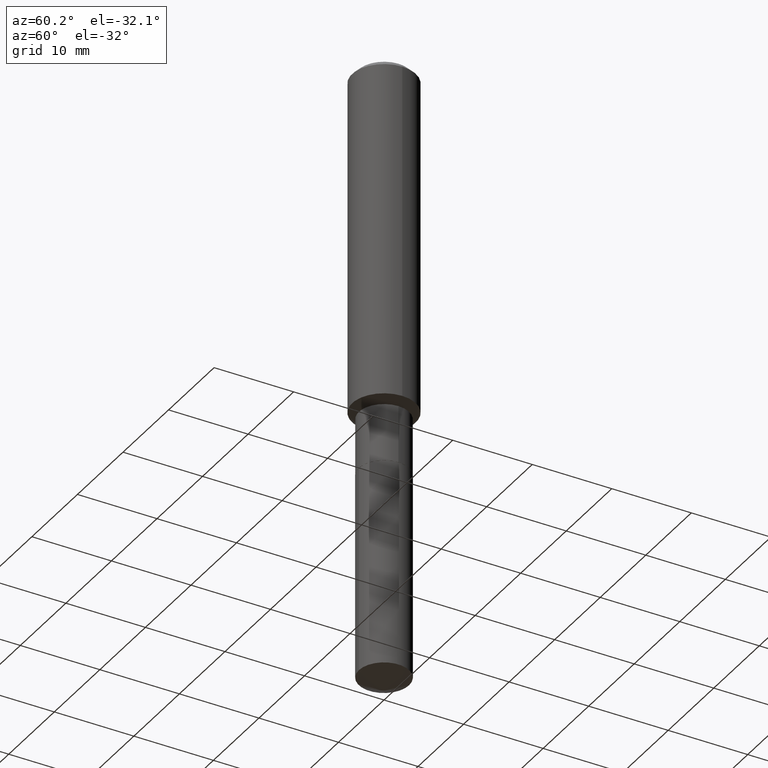
[diagram: clean part render]
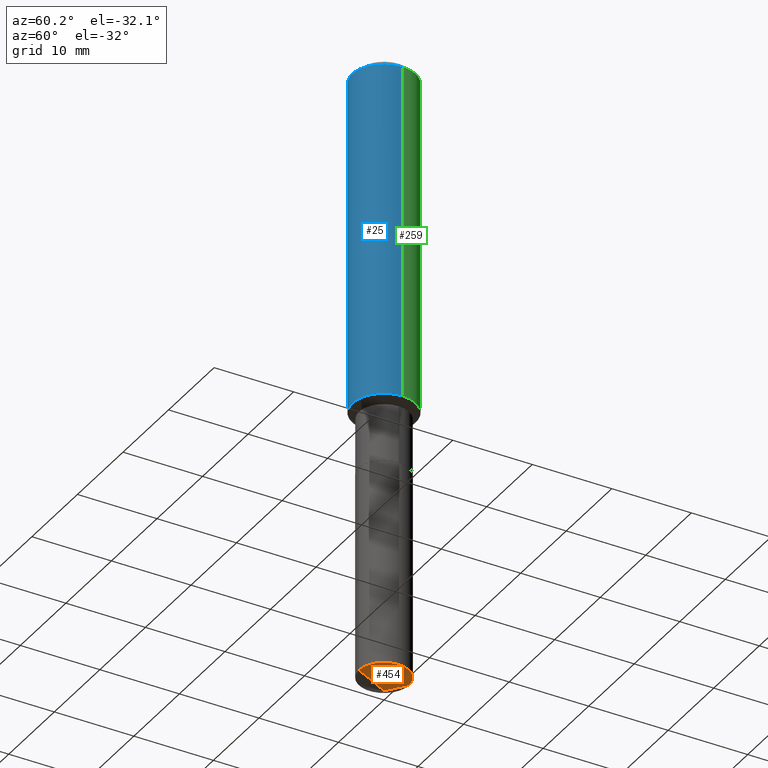
[diagram: same view with three faces highlighted in distinct colors, each labeled with its STEP entity id]
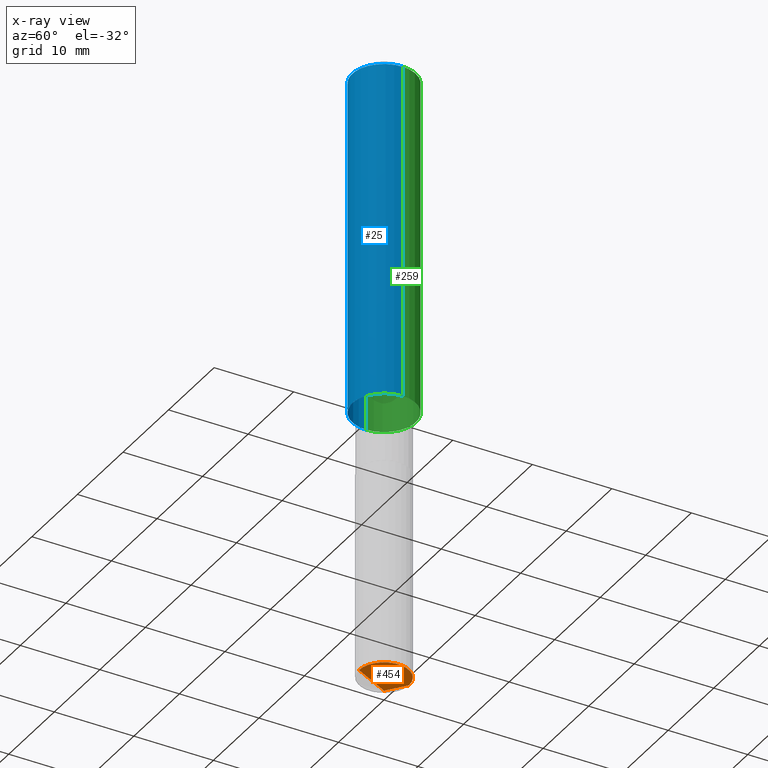
[diagram: x-ray of the same camera — body ghosted, the three highlighted faces saturated]
A machine part, auxiliary view with three faces highlighted in distinct colors.
The next image is the same camera in x-ray (body ghosted, the three faces saturated) — at least one of them is partly hidden behind the body in this view.
Their STEP definitions:

[orange] entity #454 — the highlighted conical surface has half-angle 62 deg.
#1 = VECTOR ( 'NONE', #429, 39.37007874015748854 ) ;
#8 = DIRECTION ( 'NONE',  ( -6.165590087286832874E-15, -0.8829475928589261002, 0.4694715627858920826 ) ) ;
#16 = ORIENTED_EDGE ( 'NONE', *, *, #290, .T. ) ;
#43 = LINE ( 'NONE', #314, #445 ) ;
#49 = DIRECTION ( 'NONE',  ( -6.982962677686265922E-15, -1.000000000000000000, 4.406206441393973340E-15 ) ) ;
#70 = DIRECTION ( 'NONE',  ( -2.445312113218767742E-29, 3.491705732089395604E-15, 1.000000000000000000 ) ) ;
#76 = CARTESIAN_POINT ( 'NONE',  ( 7.444501947917535459E-29, -1.062923494742235287E-14, -3.044268030473976872 ) ) ;
#81 = AXIS2_PLACEMENT_3D ( 'NONE', #213, #363, #395 ) ;
#88 = CIRCLE ( 'NONE', #399, 0.1239999999999999991 ) ;
#139 = CONICAL_SURFACE ( 'NONE', #81, 74.04434902938348273, 1.082104136236486269 ) ;
#200 = LINE ( 'NONE', #270, #1 ) ;
#213 = CARTESIAN_POINT ( 'NONE',  ( -8.866640425003587604E-28, 1.266092796264744180E-13, 36.25987874015748247 ) ) ;
#243 = FACE_OUTER_BOUND ( 'NONE', #409, .T. ) ;
#261 = CARTESIAN_POINT ( 'NONE',  ( -8.658873720330223828E-16, -0.1240000000000106156, -3.044268030473976427 ) ) ;
#270 = CARTESIAN_POINT ( 'NONE',  ( 7.606048198673468598E-29, -1.085899679874418524E-14, -3.110199999999999854 ) ) ;
#279 = CARTESIAN_POINT ( 'NONE',  ( 7.605409734533011841E-29, -1.085990316794443737E-14, -3.110199999999999854 ) ) ;
#290 = EDGE_CURVE ( 'NONE', #449, #366, #200, .T. ) ;
#314 = CARTESIAN_POINT ( 'NONE',  ( 7.605409734533011841E-29, -1.085990316794443737E-14, -3.110199999999999854 ) ) ;
#346 = ORIENTED_EDGE ( 'NONE', *, *, #380, .F. ) ;
#349 = EDGE_CURVE ( 'NONE', #402, #366, #88, .T. ) ;
#363 = DIRECTION ( 'NONE',  ( -2.445312113218767742E-29, 3.491705732089395604E-15, 1.000000000000000000 ) ) ;
#364 = ORIENTED_EDGE ( 'NONE', *, *, #349, .F. ) ;
#366 = VERTEX_POINT ( 'NONE', #390 ) ;
#380 = EDGE_CURVE ( 'NONE', #449, #402, #43, .T. ) ;
#390 = CARTESIAN_POINT ( 'NONE',  ( 8.810729923425982785E-16, 0.1239999999999893548, -3.044268030473977760 ) ) ;
#395 = DIRECTION ( 'NONE',  ( -6.982962677686266711E-15, -1.000000000000000000, 3.541896320645563630E-15 ) ) ;
#399 = AXIS2_PLACEMENT_3D ( 'NONE', #76, #70, #49 ) ;
#402 = VERTEX_POINT ( 'NONE', #261 ) ;
#409 = EDGE_LOOP ( 'NONE', ( #346, #16, #364 ) ) ;
#429 = DIRECTION ( 'NONE',  ( 6.273719981627763710E-15, 0.8829475928589293199, 0.4694715627858859208 ) ) ;
#445 = VECTOR ( 'NONE', #8, 39.37007874015748854 ) ;
#449 = VERTEX_POINT ( 'NONE', #279 ) ;
#454 = ADVANCED_FACE ( 'NONE', ( #243 ), #139, .T. ) ;

[blue] entity #25 — the highlighted cylindrical surface (partial cylindrical patch) has radius 4.0005 mm, axis along (-0, 0, 1).
#11 = VERTEX_POINT ( 'NONE', #271 ) ;
#20 = DIRECTION ( 'NONE',  ( 1.000000000000000000, -6.982962677686267499E-15, 4.876176775795936353E-29 ) ) ;
#25 = ADVANCED_FACE ( 'NONE', ( #378 ), #42, .T. ) ;
#37 = EDGE_LOOP ( 'NONE', ( #189, #474, #329, #299 ) ) ;
#42 = CYLINDRICAL_SURFACE ( 'NONE', #111, 0.1575000000000000844 ) ;
#57 = DIRECTION ( 'NONE',  ( -2.445468806185136877E-29, 3.491481338843145188E-15, 1.000000000000000000 ) ) ;
#80 = DIRECTION ( 'NONE',  ( -2.445468806185136597E-29, 3.491481338843145583E-15, 1.000000000000000000 ) ) ;
#95 = VECTOR ( 'NONE', #57, 39.37007874015748143 ) ;
#97 = DIRECTION ( 'NONE',  ( 1.000000000000000000, -6.982962677686265922E-15, 0.000000000000000000 ) ) ;
#104 = VERTEX_POINT ( 'NONE', #461 ) ;
#111 = AXIS2_PLACEMENT_3D ( 'NONE', #199, #354, #20 ) ;
#134 = DIRECTION ( 'NONE',  ( -2.445468806185136877E-29, 3.491481338843145188E-15, 1.000000000000000000 ) ) ;
#158 = CARTESIAN_POINT ( 'NONE',  ( 7.703226739483228723E-31, -1.099816621735597661E-16, -0.03150000000000019451 ) ) ;
#178 = CARTESIAN_POINT ( 'NONE',  ( 4.159497892440299257E-29, -5.938660609238306710E-15, -1.700900000000000079 ) ) ;
#183 = DIRECTION ( 'NONE',  ( -2.445468806185136597E-29, 3.491481338843145583E-15, 1.000000000000000000 ) ) ;
#186 = EDGE_CURVE ( 'NONE', #371, #11, #327, .T. ) ;
#189 = ORIENTED_EDGE ( 'NONE', *, *, #419, .F. ) ;
#197 = LINE ( 'NONE', #302, #95 ) ;
#199 = CARTESIAN_POINT ( 'NONE',  ( 0.000000000000000000, 0.000000000000000000, 0.000000000000000000 ) ) ;
#208 = CARTESIAN_POINT ( 'NONE',  ( -0.1575000000000001954, -4.819555800416148317E-15, -1.700900000000000079 ) ) ;
#212 = AXIS2_PLACEMENT_3D ( 'NONE', #158, #80, #305 ) ;
#249 = LINE ( 'NONE', #441, #457 ) ;
#257 = VERTEX_POINT ( 'NONE', #387 ) ;
#271 = CARTESIAN_POINT ( 'NONE',  ( 0.1575000000000001954, -7.038477230973894979E-15, -1.700900000000000079 ) ) ;
#299 = ORIENTED_EDGE ( 'NONE', *, *, #320, .F. ) ;
#302 = CARTESIAN_POINT ( 'NONE',  ( -0.1575000000000000844, 1.119104808822158392E-15, -7.747322767151481189E-30 ) ) ;
#305 = DIRECTION ( 'NONE',  ( 1.000000000000000000, -6.982962677686265922E-15, 0.000000000000000000 ) ) ;
#320 = EDGE_CURVE ( 'NONE', #104, #257, #337, .T. ) ;
#327 = CIRCLE ( 'NONE', #394, 0.1575000000000001954 ) ;
#329 = ORIENTED_EDGE ( 'NONE', *, *, #434, .T. ) ;
#337 = CIRCLE ( 'NONE', #212, 0.1575000000000000011 ) ;
#354 = DIRECTION ( 'NONE',  ( -2.445468806185136597E-29, 3.491481338843145583E-15, 1.000000000000000000 ) ) ;
#371 = VERTEX_POINT ( 'NONE', #208 ) ;
#378 = FACE_OUTER_BOUND ( 'NONE', #37, .T. ) ;
#387 = CARTESIAN_POINT ( 'NONE',  ( 0.1575000000000000011, -1.209798283909146741E-15, -0.03150000000000019451 ) ) ;
#394 = AXIS2_PLACEMENT_3D ( 'NONE', #178, #183, #97 ) ;
#419 = EDGE_CURVE ( 'NONE', #371, #104, #197, .T. ) ;
#434 = EDGE_CURVE ( 'NONE', #11, #257, #249, .T. ) ;
#441 = CARTESIAN_POINT ( 'NONE',  ( 0.1575000000000000844, -1.099816621735587677E-15, 7.679978421878603638E-30 ) ) ;
#457 = VECTOR ( 'NONE', #134, 39.37007874015748143 ) ;
#461 = CARTESIAN_POINT ( 'NONE',  ( -0.1575000000000000011, -1.905216326883773903E-15, -0.03150000000000019451 ) ) ;
#474 = ORIENTED_EDGE ( 'NONE', *, *, #186, .T. ) ;

[green] entity #259 — the highlighted cylindrical surface (partial cylindrical patch) has radius 4.0005 mm, axis along (-0, 0, 1).
#11 = VERTEX_POINT ( 'NONE', #271 ) ;
#28 = CARTESIAN_POINT ( 'NONE',  ( 7.703226739483228723E-31, -1.099816621735597661E-16, -0.03150000000000019451 ) ) ;
#56 = EDGE_CURVE ( 'NONE', #11, #371, #353, .T. ) ;
#57 = DIRECTION ( 'NONE',  ( -2.445468806185136877E-29, 3.491481338843145188E-15, 1.000000000000000000 ) ) ;
#93 = CIRCLE ( 'NONE', #374, 0.1575000000000000011 ) ;
#95 = VECTOR ( 'NONE', #57, 39.37007874015748143 ) ;
#102 = ORIENTED_EDGE ( 'NONE', *, *, #154, .F. ) ;
#104 = VERTEX_POINT ( 'NONE', #461 ) ;
#113 = DIRECTION ( 'NONE',  ( 1.000000000000000000, -6.982962677686267499E-15, 4.876176775795936353E-29 ) ) ;
#119 = CYLINDRICAL_SURFACE ( 'NONE', #147, 0.1575000000000000844 ) ;
#127 = DIRECTION ( 'NONE',  ( 1.000000000000000000, -6.982962677686265922E-15, 0.000000000000000000 ) ) ;
#128 = CARTESIAN_POINT ( 'NONE',  ( 4.159497892440299257E-29, -5.938660609238306710E-15, -1.700900000000000079 ) ) ;
#134 = DIRECTION ( 'NONE',  ( -2.445468806185136877E-29, 3.491481338843145188E-15, 1.000000000000000000 ) ) ;
#147 = AXIS2_PLACEMENT_3D ( 'NONE', #206, #455, #113 ) ;
#154 = EDGE_CURVE ( 'NONE', #257, #104, #93, .T. ) ;
#197 = LINE ( 'NONE', #302, #95 ) ;
#206 = CARTESIAN_POINT ( 'NONE',  ( 0.000000000000000000, 0.000000000000000000, 0.000000000000000000 ) ) ;
#208 = CARTESIAN_POINT ( 'NONE',  ( -0.1575000000000001954, -4.819555800416148317E-15, -1.700900000000000079 ) ) ;
#236 = DIRECTION ( 'NONE',  ( -2.445468806185136597E-29, 3.491481338843145583E-15, 1.000000000000000000 ) ) ;
#249 = LINE ( 'NONE', #441, #457 ) ;
#256 = ORIENTED_EDGE ( 'NONE', *, *, #434, .F. ) ;
#257 = VERTEX_POINT ( 'NONE', #387 ) ;
#259 = ADVANCED_FACE ( 'NONE', ( #463 ), #119, .T. ) ;
#271 = CARTESIAN_POINT ( 'NONE',  ( 0.1575000000000001954, -7.038477230973894979E-15, -1.700900000000000079 ) ) ;
#302 = CARTESIAN_POINT ( 'NONE',  ( -0.1575000000000000844, 1.119104808822158392E-15, -7.747322767151481189E-30 ) ) ;
#308 = EDGE_LOOP ( 'NONE', ( #318, #440, #102, #256 ) ) ;
#318 = ORIENTED_EDGE ( 'NONE', *, *, #56, .T. ) ;
#353 = CIRCLE ( 'NONE', #416, 0.1575000000000001954 ) ;
#371 = VERTEX_POINT ( 'NONE', #208 ) ;
#374 = AXIS2_PLACEMENT_3D ( 'NONE', #28, #428, #127 ) ;
#382 = DIRECTION ( 'NONE',  ( 1.000000000000000000, -6.982962677686265922E-15, 0.000000000000000000 ) ) ;
#387 = CARTESIAN_POINT ( 'NONE',  ( 0.1575000000000000011, -1.209798283909146741E-15, -0.03150000000000019451 ) ) ;
#416 = AXIS2_PLACEMENT_3D ( 'NONE', #128, #236, #382 ) ;
#419 = EDGE_CURVE ( 'NONE', #371, #104, #197, .T. ) ;
#428 = DIRECTION ( 'NONE',  ( -2.445468806185136597E-29, 3.491481338843145583E-15, 1.000000000000000000 ) ) ;
#434 = EDGE_CURVE ( 'NONE', #11, #257, #249, .T. ) ;
#440 = ORIENTED_EDGE ( 'NONE', *, *, #419, .T. ) ;
#441 = CARTESIAN_POINT ( 'NONE',  ( 0.1575000000000000844, -1.099816621735587677E-15, 7.679978421878603638E-30 ) ) ;
#455 = DIRECTION ( 'NONE',  ( -2.445468806185136597E-29, 3.491481338843145583E-15, 1.000000000000000000 ) ) ;
#457 = VECTOR ( 'NONE', #134, 39.37007874015748143 ) ;
#461 = CARTESIAN_POINT ( 'NONE',  ( -0.1575000000000000011, -1.905216326883773903E-15, -0.03150000000000019451 ) ) ;
#463 = FACE_OUTER_BOUND ( 'NONE', #308, .T. ) ;